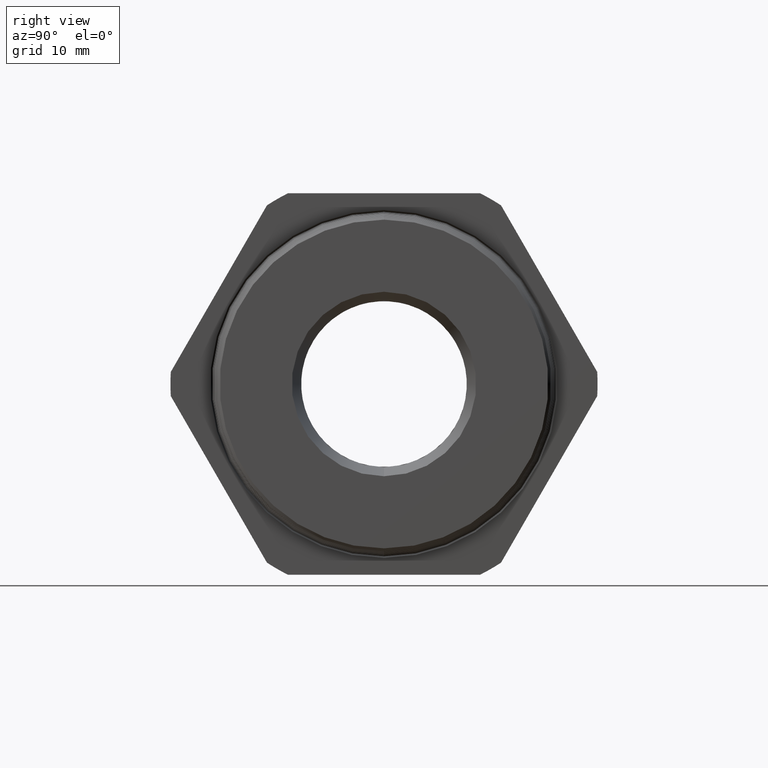
[diagram: clean part render]
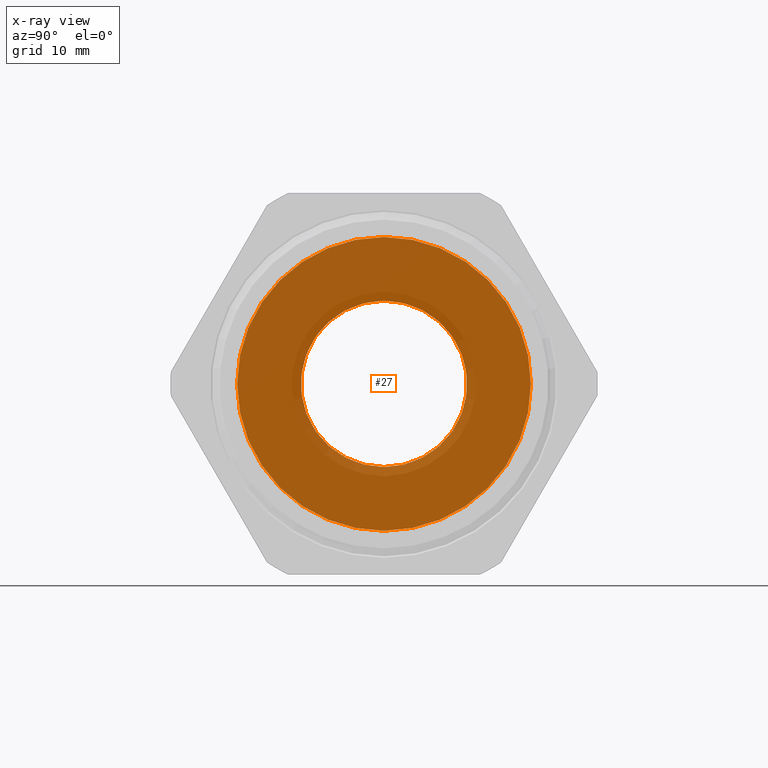
[diagram: x-ray — body ghosted, one internal face saturated and labeled with its STEP entity id]
A machine part, right view, then the same camera in x-ray: the body is ghosted and one INTERNAL B-rep face — a face not visible from any outside direction — is saturated and labeled: STEP entity #27.
In plain terms, the highlighted planar face has unit normal (1, 0, 0).
Its self-contained STEP definition (entity closure, byte-faithful):
#25 = ORIENTED_EDGE ( 'NONE', *, *, #29, .F. ) ;
#26 = EDGE_LOOP ( 'NONE', ( #25, #4054 ) ) ;
#27 = ADVANCED_FACE ( 'NONE', ( #1387, #1446 ), #1445, .F. ) ;
#29 = EDGE_CURVE ( 'NONE', #1331, #1328, #1440, .T. ) ;
#1276 = EDGE_CURVE ( 'NONE', #1318, #1319, #3622, .T. ) ;
#1318 = VERTEX_POINT ( 'NONE', #3709 ) ;
#1319 = VERTEX_POINT ( 'NONE', #3708 ) ;
#1328 = VERTEX_POINT ( 'NONE', #3694 ) ;
#1330 = EDGE_CURVE ( 'NONE', #1328, #1331, #3758, .T. ) ;
#1331 = VERTEX_POINT ( 'NONE', #3753 ) ;
#1387 = FACE_BOUND ( 'NONE', #26, .T. ) ;
#1436 = DIRECTION ( 'NONE',  ( 0.0000000000000000000, 0.0000000000000000000, 1.000000000000000000 ) ) ;
#1437 = DIRECTION ( 'NONE',  ( -1.000000000000000000, 0.0000000000000000000, 0.0000000000000000000 ) ) ;
#1438 = CARTESIAN_POINT ( 'NONE',  ( -1.106250000000000200, 0.0000000000000000000, 0.0000000000000000000 ) ) ;
#1439 = AXIS2_PLACEMENT_3D ( 'NONE', #1438, #1437, #1436 ) ;
#1440 = CIRCLE ( 'NONE', #1439, 0.3950000000000000200 ) ;
#1441 = DIRECTION ( 'NONE',  ( 0.0000000000000000000, 0.0000000000000000000, -1.000000000000000000 ) ) ;
#1442 = DIRECTION ( 'NONE',  ( 1.000000000000000000, 0.0000000000000000000, 0.0000000000000000000 ) ) ;
#1443 = CARTESIAN_POINT ( 'NONE',  ( -1.106250000000000200, 0.6969999999999999500, 0.0000000000000000000 ) ) ;
#1444 = AXIS2_PLACEMENT_3D ( 'NONE', #1443, #1442, #1441 ) ;
#1445 = PLANE ( 'NONE',  #1444 ) ;
#1446 = FACE_OUTER_BOUND ( 'NONE', #4052, .T. ) ;
#3619 = DIRECTION ( 'NONE',  ( 0.0000000000000000000, 0.0000000000000000000, 1.000000000000000000 ) ) ;
#3620 = DIRECTION ( 'NONE',  ( -1.000000000000000000, 0.0000000000000000000, 0.0000000000000000000 ) ) ;
#3621 = AXIS2_PLACEMENT_3D ( 'NONE', #3626, #3620, #3619 ) ;
#3622 = CIRCLE ( 'NONE', #3621, 0.6969999999999999500 ) ;
#3626 = CARTESIAN_POINT ( 'NONE',  ( -1.106250000000000200, 0.0000000000000000000, 0.0000000000000000000 ) ) ;
#3694 = CARTESIAN_POINT ( 'NONE',  ( -1.106250000000000200, 4.837354856632045600E-017, -0.3950000000000000200 ) ) ;
#3708 = CARTESIAN_POINT ( 'NONE',  ( -1.106250000000000200, 0.0000000000000000000, 0.6969999999999999500 ) ) ;
#3709 = CARTESIAN_POINT ( 'NONE',  ( -1.106250000000000200, 8.535788190057050200E-017, -0.6969999999999999500 ) ) ;
#3753 = CARTESIAN_POINT ( 'NONE',  ( -1.106250000000000200, 0.0000000000000000000, 0.3950000000000000200 ) ) ;
#3754 = DIRECTION ( 'NONE',  ( 0.0000000000000000000, 0.0000000000000000000, 1.000000000000000000 ) ) ;
#3755 = DIRECTION ( 'NONE',  ( -1.000000000000000000, 0.0000000000000000000, 0.0000000000000000000 ) ) ;
#3756 = CARTESIAN_POINT ( 'NONE',  ( -1.106250000000000200, 0.0000000000000000000, 0.0000000000000000000 ) ) ;
#3757 = AXIS2_PLACEMENT_3D ( 'NONE', #3756, #3755, #3754 ) ;
#3758 = CIRCLE ( 'NONE', #3757, 0.3950000000000000200 ) ;
#3851 = DIRECTION ( 'NONE',  ( 0.0000000000000000000, 0.0000000000000000000, 1.000000000000000000 ) ) ;
#3852 = DIRECTION ( 'NONE',  ( -1.000000000000000000, 0.0000000000000000000, 0.0000000000000000000 ) ) ;
#3853 = CARTESIAN_POINT ( 'NONE',  ( -1.106250000000000200, 0.0000000000000000000, 0.0000000000000000000 ) ) ;
#3854 = AXIS2_PLACEMENT_3D ( 'NONE', #3853, #3852, #3851 ) ;
#3855 = CIRCLE ( 'NONE', #3854, 0.6969999999999999500 ) ;
#4049 = ORIENTED_EDGE ( 'NONE', *, *, #1276, .T. ) ;
#4050 = ORIENTED_EDGE ( 'NONE', *, *, #4051, .T. ) ;
#4051 = EDGE_CURVE ( 'NONE', #1319, #1318, #3855, .T. ) ;
#4052 = EDGE_LOOP ( 'NONE', ( #4050, #4049 ) ) ;
#4054 = ORIENTED_EDGE ( 'NONE', *, *, #1330, .F. ) ;